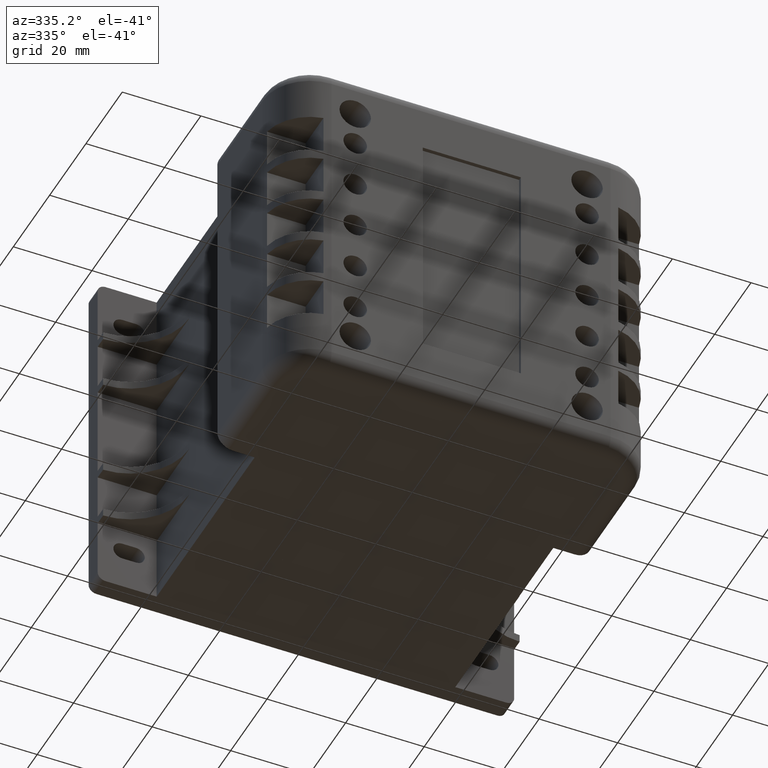
[diagram: clean part render]
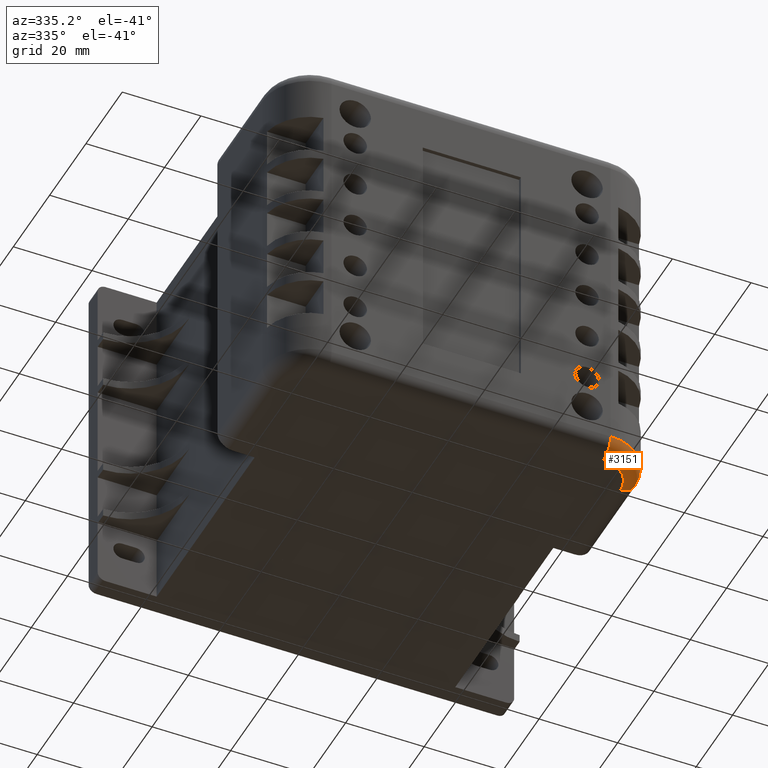
[diagram: same view with one face highlighted and labeled with its STEP entity id]
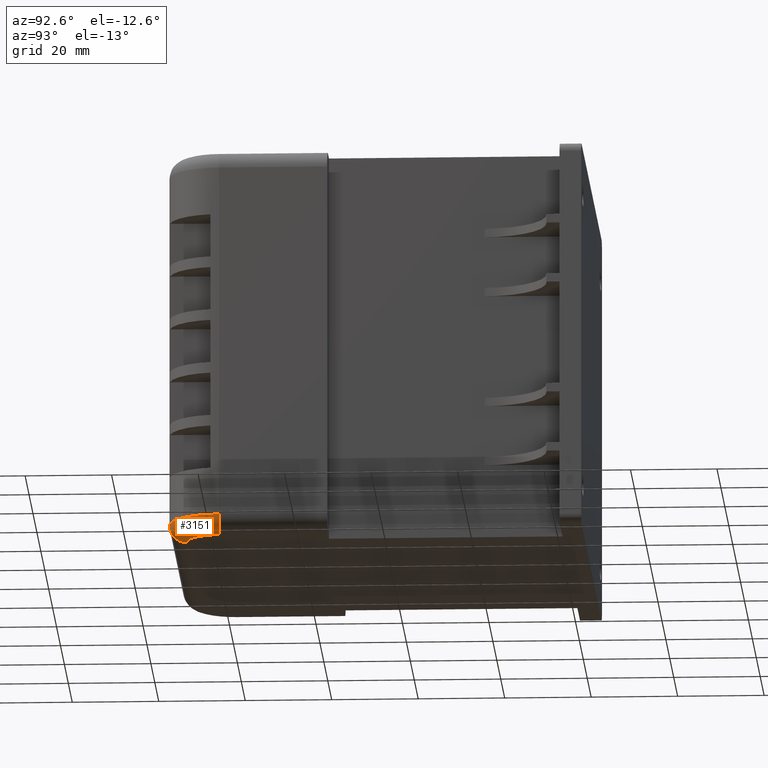
[diagram: same view with one face highlighted and labeled with its STEP entity id]
A machine part, auxiliary view. The second image highlights one B-rep face of the part: STEP entity #3151.
A second angle (auxiliary view) of the same face is appended — the face is thin or edge-on in the first view.
In plain terms, the highlighted toroidal blend (fillet) surface has major radius 8 mm and minor (blend) radius 4 mm.
Its self-contained STEP definition (entity closure, byte-faithful):
#24=TOROIDAL_SURFACE('',#3488,8.,4.);
#73=CIRCLE('',#3418,8.);
#106=CIRCLE('',#3487,4.);
#107=CIRCLE('',#3489,4.00000000000003);
#108=CIRCLE('',#3490,12.);
#282=FACE_OUTER_BOUND('',#472,.T.);
#472=EDGE_LOOP('',(#2118,#2119,#2120,#2121));
#1282=VERTEX_POINT('',#4703);
#1283=VERTEX_POINT('',#4705);
#1324=VERTEX_POINT('',#4844);
#1325=VERTEX_POINT('',#4848);
#1567=EDGE_CURVE('',#1283,#1282,#73,.T.);
#1629=EDGE_CURVE('',#1283,#1324,#106,.T.);
#1631=EDGE_CURVE('',#1282,#1325,#107,.T.);
#1632=EDGE_CURVE('',#1325,#1324,#108,.T.);
#2118=ORIENTED_EDGE('',*,*,#1631,.T.);
#2119=ORIENTED_EDGE('',*,*,#1632,.T.);
#2120=ORIENTED_EDGE('',*,*,#1629,.F.);
#2121=ORIENTED_EDGE('',*,*,#1567,.T.);
#3151=ADVANCED_FACE('',(#282),#24,.T.);
#3418=AXIS2_PLACEMENT_3D('',#4706,#3785,#3786);
#3487=AXIS2_PLACEMENT_3D('',#4845,#3952,#3953);
#3488=AXIS2_PLACEMENT_3D('',#4847,#3955,#3956);
#3489=AXIS2_PLACEMENT_3D('',#4849,#3957,#3958);
#3490=AXIS2_PLACEMENT_3D('',#4850,#3959,#3960);
#3785=DIRECTION('center_axis',(0.,0.,1.));
#3786=DIRECTION('ref_axis',(-0.707106781186549,0.707106781186546,0.));
#3952=DIRECTION('center_axis',(1.,0.,0.));
#3953=DIRECTION('ref_axis',(0.,0.,-1.));
#3955=DIRECTION('center_axis',(0.,0.,1.));
#3956=DIRECTION('ref_axis',(1.,0.,0.));
#3957=DIRECTION('center_axis',(0.,1.,0.));
#3958=DIRECTION('ref_axis',(0.,0.,-1.));
#3959=DIRECTION('center_axis',(0.,0.,-1.));
#3960=DIRECTION('ref_axis',(-0.707106781186549,0.707106781186546,0.));
#4703=CARTESIAN_POINT('',(-91.,25.,0.));
#4705=CARTESIAN_POINT('',(-83.,33.,0.));
#4706=CARTESIAN_POINT('Origin',(-83.,25.,0.));
#4844=CARTESIAN_POINT('',(-83.,37.,4.));
#4845=CARTESIAN_POINT('Origin',(-83.,33.,4.));
#4847=CARTESIAN_POINT('Origin',(-83.,25.,4.00000000000003));
#4848=CARTESIAN_POINT('',(-95.,25.,4.00000000000003));
#4849=CARTESIAN_POINT('Origin',(-91.,25.,4.00000000000003));
#4850=CARTESIAN_POINT('Origin',(-83.,25.,4.00000000000003));